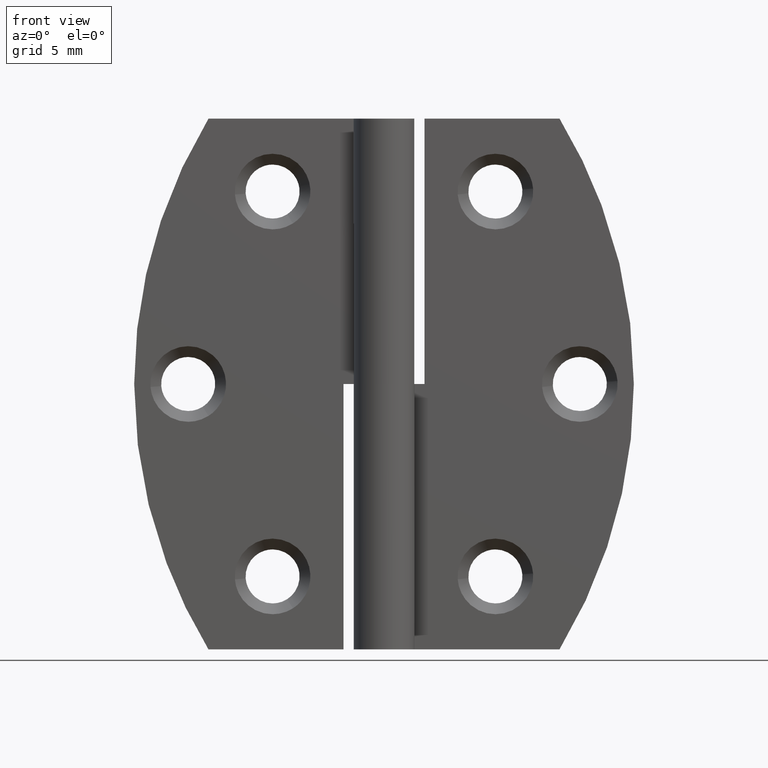
[diagram: clean part render]
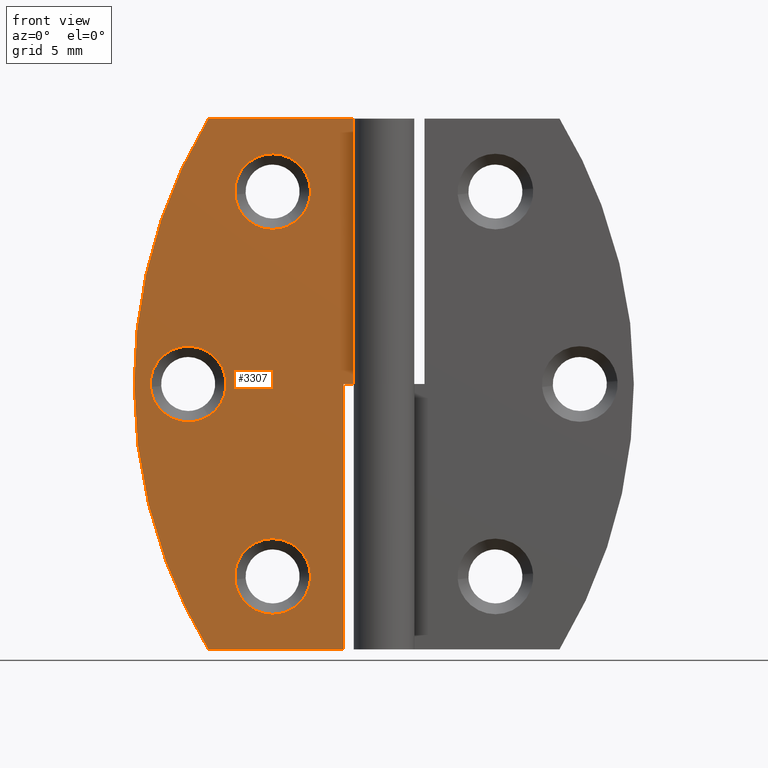
[diagram: same view with one face highlighted and labeled with its STEP entity id]
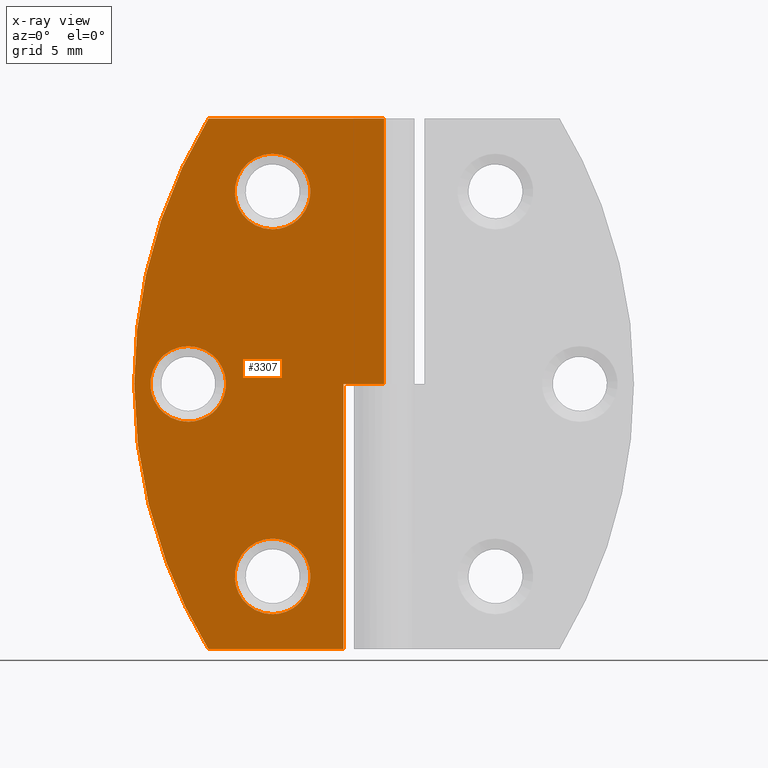
[diagram: x-ray of the same camera — body ghosted, the highlighted face saturated]
A machine part, front view. The second image highlights one B-rep face of the part: STEP entity #3307.
The next image is the same camera in x-ray: the body ghosted, the highlighted face saturated — about 0% of this face is hidden behind the body in this view.
In plain terms, the highlighted face is a freeform B-spline surface patch.
Its self-contained STEP definition (entity closure, byte-faithful):
#1910=CARTESIAN_POINT('',(-6.744017778316858,1.249999999997908,3.039489863198744));
#1911=VERTEX_POINT('',#1910);
#1917=CARTESIAN_POINT('',(-8.250000000000000,1.250000000000000,8.200002000000000));
#1918=VERTEX_POINT('',#1917);
#1919=CARTESIAN_POINT('',(-8.250000000000000,1.250000000000000,8.200002000000000));
#1920=CARTESIAN_POINT('',(-5.450000000000000,1.250000000000000,8.200002000000000));
#1921=CARTESIAN_POINT('',(-5.450000000000000,1.250000000000000,5.400002000000000));
#1922=CARTESIAN_POINT('',(-5.450000000000000,1.250000000000001,3.865059763209169));
#1923=CARTESIAN_POINT('',(-6.744017778316858,1.249999999997908,3.039489863198743));
#1931=(BOUNDED_CURVE()B_SPLINE_CURVE(2,(#1919,#1920,#1921,#1922,#1923),.UNSPECIFIED.,.F.,.U.)B_SPLINE_CURVE_WITH_KNOTS((3,2,3),(0.0,0.250000000000000,0.407950112623347),.UNSPECIFIED.)CURVE()GEOMETRIC_REPRESENTATION_ITEM()RATIONAL_B_SPLINE_CURVE((1.0,0.707106781186547,1.0,0.814949932407203,0.863729296952327))REPRESENTATION_ITEM(''));
#1932=EDGE_CURVE('',#1918,#1911,#1931,.T.);
#1934=CARTESIAN_POINT('',(-11.041368534459471,1.249999999982987,5.180316531830481));
#1935=VERTEX_POINT('',#1934);
#1936=CARTESIAN_POINT('',(-11.041368534459473,1.249999999982986,5.180316531830482));
#1937=CARTESIAN_POINT('',(-11.049999999999997,1.250000000000000,5.289989700247704));
#1938=CARTESIAN_POINT('',(-11.050000000000001,1.250000000000000,5.400002000000000));
#1939=CARTESIAN_POINT('',(-11.050000000000001,1.250000000000000,8.200002000000000));
#1940=CARTESIAN_POINT('',(-8.250000000000000,1.250000000000000,8.200002000000000));
#1948=(BOUNDED_CURVE()B_SPLINE_CURVE(2,(#1936,#1937,#1938,#1939,#1940),.UNSPECIFIED.,.F.,.U.)B_SPLINE_CURVE_WITH_KNOTS((3,2,3),(0.736331300616773,0.750000000000000,1.0),.UNSPECIFIED.)CURVE()GEOMETRIC_REPRESENTATION_ITEM()RATIONAL_B_SPLINE_CURVE((0.969723356138438,0.983986122562613,1.0,0.707106781186547,1.0))REPRESENTATION_ITEM(''));
#1949=EDGE_CURVE('',#1935,#1918,#1948,.T.);
#2053=CARTESIAN_POINT('',(-8.250000000000000,1.250000000000000,2.600002000000000));
#2054=VERTEX_POINT('',#2053);
#2055=CARTESIAN_POINT('',(-8.250000000000000,1.250000000000000,2.600002000000000));
#2056=CARTESIAN_POINT('',(-10.838293376400735,1.250000000000000,2.600002000000000));
#2057=CARTESIAN_POINT('',(-11.041368534459471,1.249999999982986,5.180316531830481));
#2065=(BOUNDED_CURVE()B_SPLINE_CURVE(2,(#2055,#2056,#2057),.UNSPECIFIED.,.F.,.U.)B_SPLINE_CURVE_WITH_KNOTS((3,3),(0.500000000000000,0.736331300616772),.UNSPECIFIED.)CURVE()GEOMETRIC_REPRESENTATION_ITEM()RATIONAL_B_SPLINE_CURVE((1.0,0.723120658623936,0.969723356138436))REPRESENTATION_ITEM(''));
#2066=EDGE_CURVE('',#2054,#1935,#2065,.T.);
#2068=CARTESIAN_POINT('',(-6.744017778316858,1.249999999997908,3.039489863198743));
#2069=CARTESIAN_POINT('',(-7.432881444896037,1.250000000000000,2.600002000000000));
#2070=CARTESIAN_POINT('',(-8.250000000000000,1.250000000000000,2.600002000000000));
#2078=(BOUNDED_CURVE()B_SPLINE_CURVE(2,(#2068,#2069,#2070),.UNSPECIFIED.,.F.,.U.)B_SPLINE_CURVE_WITH_KNOTS((3,3),(0.407950112623347,0.500000000000000),.UNSPECIFIED.)CURVE()GEOMETRIC_REPRESENTATION_ITEM()RATIONAL_B_SPLINE_CURVE((0.863729296952327,0.892156848779345,1.0))REPRESENTATION_ITEM(''));
#2079=EDGE_CURVE('',#1911,#2054,#2078,.T.);
#2254=CARTESIAN_POINT('',(-12.994017778316859,1.249999999997906,17.289489863198749));
#2255=VERTEX_POINT('',#2254);
#2261=CARTESIAN_POINT('',(-14.500000000000000,1.250000000000000,22.450002000000001));
#2262=VERTEX_POINT('',#2261);
#2263=CARTESIAN_POINT('',(-14.500000000000000,1.250000000000000,22.450002000000001));
#2264=CARTESIAN_POINT('',(-11.700000000000001,1.250000000000000,22.450001999999994));
#2265=CARTESIAN_POINT('',(-11.699999999999999,1.250000000000000,19.650002000000001));
#2266=CARTESIAN_POINT('',(-11.699999999999999,1.250000000000000,18.115059763209164));
#2267=CARTESIAN_POINT('',(-12.994017778316858,1.249999999997906,17.289489863198746));
#2275=(BOUNDED_CURVE()B_SPLINE_CURVE(2,(#2263,#2264,#2265,#2266,#2267),.UNSPECIFIED.,.F.,.U.)B_SPLINE_CURVE_WITH_KNOTS((3,2,3),(0.0,0.250000000000000,0.407950112623347),.UNSPECIFIED.)CURVE()GEOMETRIC_REPRESENTATION_ITEM()RATIONAL_B_SPLINE_CURVE((1.0,0.707106781186547,1.0,0.814949932407203,0.863729296952327))REPRESENTATION_ITEM(''));
#2276=EDGE_CURVE('',#2262,#2255,#2275,.T.);
#2278=CARTESIAN_POINT('',(-17.291368534459469,1.249999999982986,19.430316531830481));
#2279=VERTEX_POINT('',#2278);
#2280=CARTESIAN_POINT('',(-17.291368534459473,1.249999999982987,19.430316531830478));
#2281=CARTESIAN_POINT('',(-17.300000000000001,1.250000000000000,19.539989700247709));
#2282=CARTESIAN_POINT('',(-17.300000000000001,1.250000000000000,19.650002000000001));
#2283=CARTESIAN_POINT('',(-17.299999999999997,1.250000000000000,22.450001999999994));
#2284=CARTESIAN_POINT('',(-14.500000000000000,1.250000000000000,22.450002000000001));
#2292=(BOUNDED_CURVE()B_SPLINE_CURVE(2,(#2280,#2281,#2282,#2283,#2284),.UNSPECIFIED.,.F.,.U.)B_SPLINE_CURVE_WITH_KNOTS((3,2,3),(0.736331300616773,0.750000000000000,1.0),.UNSPECIFIED.)CURVE()GEOMETRIC_REPRESENTATION_ITEM()RATIONAL_B_SPLINE_CURVE((0.969723356138437,0.983986122562613,1.0,0.707106781186547,1.0))REPRESENTATION_ITEM(''));
#2293=EDGE_CURVE('',#2279,#2262,#2292,.T.);
#2397=CARTESIAN_POINT('',(-14.500000000000000,1.250000000000000,16.850002000000000));
#2398=VERTEX_POINT('',#2397);
#2399=CARTESIAN_POINT('',(-14.500000000000000,1.250000000000000,16.850002000000000));
#2400=CARTESIAN_POINT('',(-17.088293376400742,1.250000000000000,16.850002000000011));
#2401=CARTESIAN_POINT('',(-17.291368534459476,1.249999999982986,19.430316531830485));
#2409=(BOUNDED_CURVE()B_SPLINE_CURVE(2,(#2399,#2400,#2401),.UNSPECIFIED.,.F.,.U.)B_SPLINE_CURVE_WITH_KNOTS((3,3),(0.500000000000000,0.736331300616772),.UNSPECIFIED.)CURVE()GEOMETRIC_REPRESENTATION_ITEM()RATIONAL_B_SPLINE_CURVE((1.0,0.723120658623936,0.969723356138436))REPRESENTATION_ITEM(''));
#2410=EDGE_CURVE('',#2398,#2279,#2409,.T.);
#2412=CARTESIAN_POINT('',(-12.994017778316858,1.249999999997906,17.289489863198746));
#2413=CARTESIAN_POINT('',(-13.682881444896035,1.250000000000000,16.850002000000007));
#2414=CARTESIAN_POINT('',(-14.500000000000000,1.250000000000000,16.850002000000000));
#2422=(BOUNDED_CURVE()B_SPLINE_CURVE(2,(#2412,#2413,#2414),.UNSPECIFIED.,.F.,.U.)B_SPLINE_CURVE_WITH_KNOTS((3,3),(0.407950112623347,0.500000000000000),.UNSPECIFIED.)CURVE()GEOMETRIC_REPRESENTATION_ITEM()RATIONAL_B_SPLINE_CURVE((0.863729296952327,0.892156848779345,1.0))REPRESENTATION_ITEM(''));
#2423=EDGE_CURVE('',#2255,#2398,#2422,.T.);
#2598=CARTESIAN_POINT('',(-6.744017778316859,1.249999999997908,31.539496863198838));
#2599=VERTEX_POINT('',#2598);
#2605=CARTESIAN_POINT('',(-8.250000000000000,1.250000000000000,36.700009000000087));
#2606=VERTEX_POINT('',#2605);
#2607=CARTESIAN_POINT('',(-8.250000000000000,1.250000000000000,36.700009000000087));
#2608=CARTESIAN_POINT('',(-5.450000000000000,1.250000000000000,36.700009000000094));
#2609=CARTESIAN_POINT('',(-5.450000000000000,1.250000000000000,33.900009000000097));
#2610=CARTESIAN_POINT('',(-5.450000000000000,1.250000000000001,32.365066763209263));
#2611=CARTESIAN_POINT('',(-6.744017778316860,1.249999999997908,31.539496863198842));
#2619=(BOUNDED_CURVE()B_SPLINE_CURVE(2,(#2607,#2608,#2609,#2610,#2611),.UNSPECIFIED.,.F.,.U.)B_SPLINE_CURVE_WITH_KNOTS((3,2,3),(0.0,0.250000000000000,0.407950112623347),.UNSPECIFIED.)CURVE()GEOMETRIC_REPRESENTATION_ITEM()RATIONAL_B_SPLINE_CURVE((1.0,0.707106781186547,1.0,0.814949932407203,0.863729296952327))REPRESENTATION_ITEM(''));
#2620=EDGE_CURVE('',#2606,#2599,#2619,.T.);
#2622=CARTESIAN_POINT('',(-11.041368534459471,1.249999999982987,33.680323531830581));
#2623=VERTEX_POINT('',#2622);
#2624=CARTESIAN_POINT('',(-11.041368534459476,1.249999999982987,33.680323531830581));
#2625=CARTESIAN_POINT('',(-11.050000000000001,1.250000000000000,33.789996700247798));
#2626=CARTESIAN_POINT('',(-11.050000000000001,1.250000000000000,33.900009000000097));
#2627=CARTESIAN_POINT('',(-11.050000000000001,1.250000000000000,36.700009000000094));
#2628=CARTESIAN_POINT('',(-8.250000000000000,1.250000000000000,36.700009000000087));
#2636=(BOUNDED_CURVE()B_SPLINE_CURVE(2,(#2624,#2625,#2626,#2627,#2628),.UNSPECIFIED.,.F.,.U.)B_SPLINE_CURVE_WITH_KNOTS((3,2,3),(0.736331300616773,0.750000000000000,1.0),.UNSPECIFIED.)CURVE()GEOMETRIC_REPRESENTATION_ITEM()RATIONAL_B_SPLINE_CURVE((0.969723356138437,0.983986122562613,1.0,0.707106781186547,1.0))REPRESENTATION_ITEM(''));
#2637=EDGE_CURVE('',#2623,#2606,#2636,.T.);
#2741=CARTESIAN_POINT('',(-8.250000000000000,1.250000000000000,31.100009000000099));
#2742=VERTEX_POINT('',#2741);
#2743=CARTESIAN_POINT('',(-8.250000000000000,1.250000000000000,31.100009000000099));
#2744=CARTESIAN_POINT('',(-10.838293376400735,1.250000000000000,31.100009000000103));
#2745=CARTESIAN_POINT('',(-11.041368534459471,1.249999999982987,33.680323531830581));
#2753=(BOUNDED_CURVE()B_SPLINE_CURVE(2,(#2743,#2744,#2745),.UNSPECIFIED.,.F.,.U.)B_SPLINE_CURVE_WITH_KNOTS((3,3),(0.500000000000000,0.736331300616772),.UNSPECIFIED.)CURVE()GEOMETRIC_REPRESENTATION_ITEM()RATIONAL_B_SPLINE_CURVE((1.0,0.723120658623936,0.969723356138436))REPRESENTATION_ITEM(''));
#2754=EDGE_CURVE('',#2742,#2623,#2753,.T.);
#2756=CARTESIAN_POINT('',(-6.744017778316860,1.249999999997908,31.539496863198842));
#2757=CARTESIAN_POINT('',(-7.432881444896038,1.250000000000000,31.100009000000096));
#2758=CARTESIAN_POINT('',(-8.250000000000000,1.250000000000000,31.100009000000099));
#2766=(BOUNDED_CURVE()B_SPLINE_CURVE(2,(#2756,#2757,#2758),.UNSPECIFIED.,.F.,.U.)B_SPLINE_CURVE_WITH_KNOTS((3,3),(0.407950112623347,0.500000000000000),.UNSPECIFIED.)CURVE()GEOMETRIC_REPRESENTATION_ITEM()RATIONAL_B_SPLINE_CURVE((0.863729296952327,0.892156848779345,1.0))REPRESENTATION_ITEM(''));
#2767=EDGE_CURVE('',#2599,#2742,#2766,.T.);
#2906=CARTESIAN_POINT('',(-3.0,1.249999999999972,19.650002000000001));
#2907=VERTEX_POINT('',#2906);
#2908=CARTESIAN_POINT('',(-3.0,1.250000000000000,0.0));
#2909=VERTEX_POINT('',#2908);
#2910=CARTESIAN_POINT('',(-3.0,1.249999999999972,19.650002000000001));
#2911=CARTESIAN_POINT('',(-3.0,1.250000000000000,0.0));
#2912=QUASI_UNIFORM_CURVE('',1,(#2910,#2911),.UNSPECIFIED.,.F.,.U.);
#2913=EDGE_CURVE('',#2907,#2909,#2912,.T.);
#2942=CARTESIAN_POINT('',(0.0,1.250000000000000,19.650002000000001));
#2943=VERTEX_POINT('',#2942);
#2944=CARTESIAN_POINT('',(0.0,1.250000000000000,19.650002000000001));
#2945=CARTESIAN_POINT('',(-3.0,1.249999999999972,19.650002000000001));
#2946=QUASI_UNIFORM_CURVE('',1,(#2944,#2945),.UNSPECIFIED.,.F.,.U.);
#2947=EDGE_CURVE('',#2943,#2907,#2946,.T.);
#3038=CARTESIAN_POINT('',(-12.999995047973600,1.249999999999972,0.0));
#3039=VERTEX_POINT('',#3038);
#3045=CARTESIAN_POINT('',(-12.999995655354020,1.250000000000000,39.300003000000103));
#3046=VERTEX_POINT('',#3045);
#3047=CARTESIAN_POINT('',(-12.999995655354031,1.249999999999972,39.300003000000103));
#3048=CARTESIAN_POINT('',(-24.935022729928775,1.249999999999972,19.650001315544539));
#3049=CARTESIAN_POINT('',(-12.999995047973609,1.249999999999972,-3.469447E-015));
#3057=(BOUNDED_CURVE()B_SPLINE_CURVE(2,(#3047,#3048,#3049),.UNSPECIFIED.,.F.,.U.)CURVE()GEOMETRIC_REPRESENTATION_ITEM()QUASI_UNIFORM_CURVE()RATIONAL_B_SPLINE_CURVE((1.0,0.854697405180328,1.0))REPRESENTATION_ITEM(''));
#3058=EDGE_CURVE('',#3046,#3039,#3057,.T.);
#3081=CARTESIAN_POINT('',(0.0,1.250000000000000,39.300003000000153));
#3082=VERTEX_POINT('',#3081);
#3083=CARTESIAN_POINT('',(-12.999995655354020,1.250000000000000,39.300003000000103));
#3084=CARTESIAN_POINT('',(0.0,1.250000000000000,39.300003000000153));
#3085=QUASI_UNIFORM_CURVE('',1,(#3083,#3084),.UNSPECIFIED.,.F.,.U.);
#3086=EDGE_CURVE('',#3046,#3082,#3085,.T.);
#3149=CARTESIAN_POINT('',(-12.999995047973600,1.249999999999972,0.0));
#3150=CARTESIAN_POINT('',(-3.0,1.250000000000000,0.0));
#3151=QUASI_UNIFORM_CURVE('',1,(#3149,#3150),.UNSPECIFIED.,.F.,.U.);
#3152=EDGE_CURVE('',#3039,#2909,#3151,.T.);
#3268=CARTESIAN_POINT('',(0.0,1.250000000000000,39.300003000000153));
#3269=CARTESIAN_POINT('',(0.0,1.250000000000000,19.650002000000001));
#3270=QUASI_UNIFORM_CURVE('',1,(#3268,#3269),.UNSPECIFIED.,.F.,.U.);
#3271=EDGE_CURVE('',#3082,#2943,#3270,.T.);
#3276=CARTESIAN_POINT('',(-19.424070938008128,1.250000000000000,-1.963035073678976));
#3277=CARTESIAN_POINT('',(-19.424070938008128,1.250000000000000,41.263039127787351));
#3278=CARTESIAN_POINT('',(0.924075268813850,1.250000000000000,-1.963035073678976));
#3279=CARTESIAN_POINT('',(0.924075268813850,1.250000000000000,41.263039127787351));
#3280=B_SPLINE_SURFACE_WITH_KNOTS('',1,1,((#3276,#3278),(#3277,#3279)),.UNSPECIFIED.,.F.,.F.,.U.,(2,2),(2,2),(0.0,43.226074201466332),(0.0,20.348146206821980),.UNSPECIFIED.);
#3281=ORIENTED_EDGE('',*,*,#2947,.F.);
#3282=ORIENTED_EDGE('',*,*,#3271,.F.);
#3283=ORIENTED_EDGE('',*,*,#3086,.F.);
#3284=ORIENTED_EDGE('',*,*,#3058,.T.);
#3285=ORIENTED_EDGE('',*,*,#3152,.T.);
#3286=ORIENTED_EDGE('',*,*,#2913,.F.);
#3287=EDGE_LOOP('',(#3281,#3282,#3283,#3284,#3285,#3286));
#3288=FACE_OUTER_BOUND('',#3287,.T.);
#3289=ORIENTED_EDGE('',*,*,#2754,.T.);
#3290=ORIENTED_EDGE('',*,*,#2637,.T.);
#3291=ORIENTED_EDGE('',*,*,#2620,.T.);
#3292=ORIENTED_EDGE('',*,*,#2767,.T.);
#3293=EDGE_LOOP('',(#3289,#3290,#3291,#3292));
#3294=FACE_BOUND('',#3293,.T.);
#3295=ORIENTED_EDGE('',*,*,#2410,.T.);
#3296=ORIENTED_EDGE('',*,*,#2293,.T.);
#3297=ORIENTED_EDGE('',*,*,#2276,.T.);
#3298=ORIENTED_EDGE('',*,*,#2423,.T.);
#3299=EDGE_LOOP('',(#3295,#3296,#3297,#3298));
#3300=FACE_BOUND('',#3299,.T.);
#3301=ORIENTED_EDGE('',*,*,#2066,.T.);
#3302=ORIENTED_EDGE('',*,*,#1949,.T.);
#3303=ORIENTED_EDGE('',*,*,#1932,.T.);
#3304=ORIENTED_EDGE('',*,*,#2079,.T.);
#3305=EDGE_LOOP('',(#3301,#3302,#3303,#3304));
#3306=FACE_BOUND('',#3305,.T.);
#3307=ADVANCED_FACE('',(#3288,#3294,#3300,#3306),#3280,.F.);